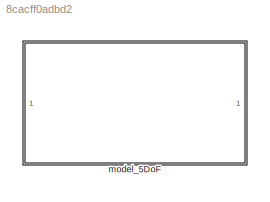
MODEL slx_8cacff0adbd2
KIND model
CONFIG AbsTol = auto
CONFIG EnableMultiTasking = off
CONFIG FixedStep = 0.002
CONFIG InitFcn = init; % init script
CONFIG MaxStep = auto
CONFIG MinStep = auto
CONFIG RelTol = 1e-3
CONFIG SampleTimeConstraint = Unconstrained
CONFIG SolverName = ode4
CONFIG StartTime = 0.0
CONFIG StopTime = 10.0
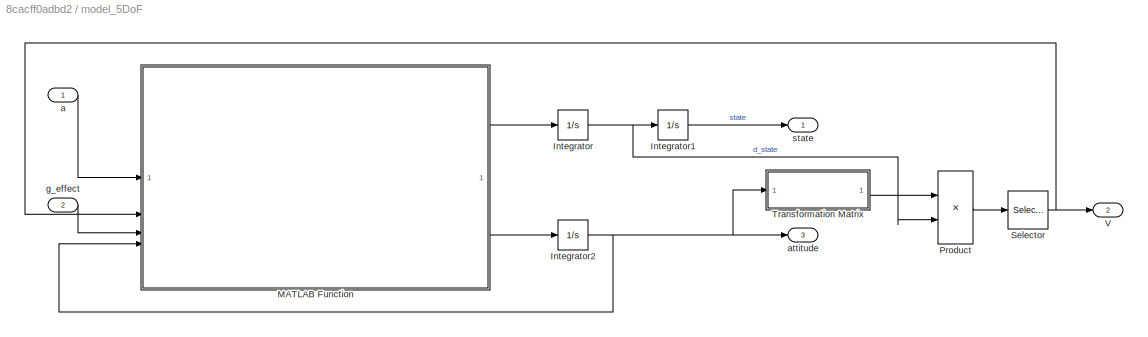
BLOCK [SubSystem] model_5DoF 
BLOCK [Integrator] model_5DoF /Integrator
  InitialCondition = d_state_m
BLOCK [Integrator] model_5DoF /Integrator1
  InitialCondition = state_m0
BLOCK [Integrator] model_5DoF /Integrator2
  InitialCondition = attitude_m0
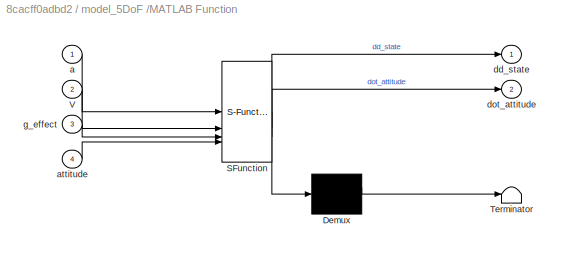
BLOCK [SubSystem] model_5DoF /MATLAB Function
  ErrorFcn = Stateflow.Translate.translate
  LibrarySourceBlock = simulink/User-Defined\nFunctions/MATLAB Function
  PermitHierarchicalResolution = ExplicitOnly
  SFBlockType = MATLAB Function
  TreatAsAtomicUnit = on
BLOCK [Demux] model_5DoF /MATLAB Function/ Demux 
  Outputs = 1
BLOCK [S-Function] model_5DoF /MATLAB Function/ SFunction 
  EnableBusSupport = on
  FunctionName = sf_sfun
  PortCounts = [4 3]
  SFcnIsStateOwnerBlock = off
  SFunctionDeploymentMode = off
  Tag = Stateflow S-Function 2
BLOCK [Terminator] model_5DoF /MATLAB Function/ Terminator 
BLOCK [Inport] model_5DoF /MATLAB Function/V
  Port = 2
BLOCK [Inport] model_5DoF /MATLAB Function/a
BLOCK [Inport] model_5DoF /MATLAB Function/attitude
  Port = 4
BLOCK [Outport] model_5DoF /MATLAB Function/dd_state
BLOCK [Outport] model_5DoF /MATLAB Function/dot_attitude
  Port = 2
BLOCK [Inport] model_5DoF /MATLAB Function/g_effect
  Port = 3
BLOCK [Product] model_5DoF /Product
  Multiplication = Matrix(*)
BLOCK [Selector] model_5DoF /Selector
  IndexOptions = Index vector (dialog)
  Indices = [1]
  InputPortWidth = 3
  OutputSizes = 1
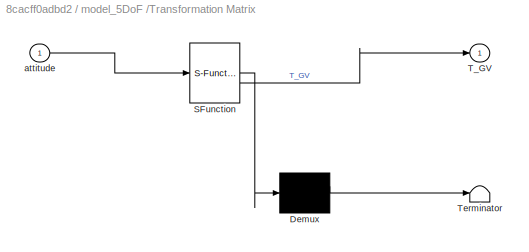
BLOCK [SubSystem] model_5DoF /Transformation Matrix
  ErrorFcn = Stateflow.Translate.translate
  LibrarySourceBlock = simulink/User-Defined\nFunctions/MATLAB Function
  PermitHierarchicalResolution = ExplicitOnly
  SFBlockType = MATLAB Function
  TreatAsAtomicUnit = on
BLOCK [Demux] model_5DoF /Transformation Matrix/ Demux 
  Outputs = 1
BLOCK [S-Function] model_5DoF /Transformation Matrix/ SFunction 
  EnableBusSupport = on
  FunctionName = sf_sfun
  PortCounts = [1 2]
  SFcnIsStateOwnerBlock = off
  SFunctionDeploymentMode = off
  Tag = Stateflow S-Function 1
BLOCK [Terminator] model_5DoF /Transformation Matrix/ Terminator 
BLOCK [Outport] model_5DoF /Transformation Matrix/T_GV
BLOCK [Inport] model_5DoF /Transformation Matrix/attitude
BLOCK [Outport] model_5DoF /V
  Port = 2
BLOCK [Inport] model_5DoF /a
BLOCK [Outport] model_5DoF /attitude
  Port = 3
BLOCK [Inport] model_5DoF /g_effect
  Port = 2
BLOCK [Outport] model_5DoF /state
LINE model_5DoF /Integrator1:1 -> model_5DoF /state:1
NET model_5DoF /Integrator2:1 -> model_5DoF /MATLAB Function:4, model_5DoF /Transformation Matrix:1, model_5DoF /attitude:1
NET model_5DoF /Integrator:1 -> model_5DoF /Integrator1:1, model_5DoF /Product:2
LINE model_5DoF /MATLAB Function:1 -> model_5DoF /Integrator:1
LINE model_5DoF /MATLAB Function:2 -> model_5DoF /Integrator2:1
LINE model_5DoF /Product:1 -> model_5DoF /Selector:1
NET model_5DoF /Selector:1 -> model_5DoF /MATLAB Function:2, model_5DoF /V:1
LINE model_5DoF /Transformation Matrix:1 -> model_5DoF /Product:1
LINE model_5DoF /a:1 -> model_5DoF /MATLAB Function:1
LINE model_5DoF /g_effect:1 -> model_5DoF /MATLAB Function:3
note: NET lines group one-source signal fan-out (src -> all destinations, sorted); 1:1 wires keep LINE
CHART model_5DoF /Transformation Matrix states=1 transitions=1
  STATE_LABEL 'eML_blk_kernel()'
  STATE_LABEL "SCRIPT:\nfunction T_GV = fcn(attitude)\ntheta = attitude(1);\npsi = attitude(2);\n\nT_VG = [cos(theta)*cos(psi)   cos(theta)*sin(psi)   sin(theta)\n            -sin(psi)               cos(psi)            0\n        -sin(theta)*cos(psi)  -sin(theta)*sin(psi)   cos(theta) ];\n\nT_GV = T_VG';\n"
CHART model_5DoF /MATLAB Function states=1 transitions=1
  STATE_LABEL 'eML_blk_kernel()'
  STATE_LABEL 'SCRIPT:\nfunction [dd_state, dot_attitude] =...\n    fcn(a, V, g_effect, attitude)\na_x = a(1);\na_y = a(2);\na_z = a(3);\n\ntheta = attitude(1);\npsi = attitude(2);\ng = 9.81;\ng = g*g_effect;\n\nddot_x = a_x*cos(theta)*cos(psi) - a_y*sin(psi) - a_z*sin(theta)*cos(psi);\nddot_y = a_x*cos(theta)*sin(psi) + a_y*cos(psi) - a_z*sin(theta)*sin(psi);\nddot_z = a_x*sin(theta) + a_z*cos(theta) - g;\n\ndd_state = [ddot_x...<+129ch>'
CHART  states=0 transitions=0
CHART  states=0 transitions=0
